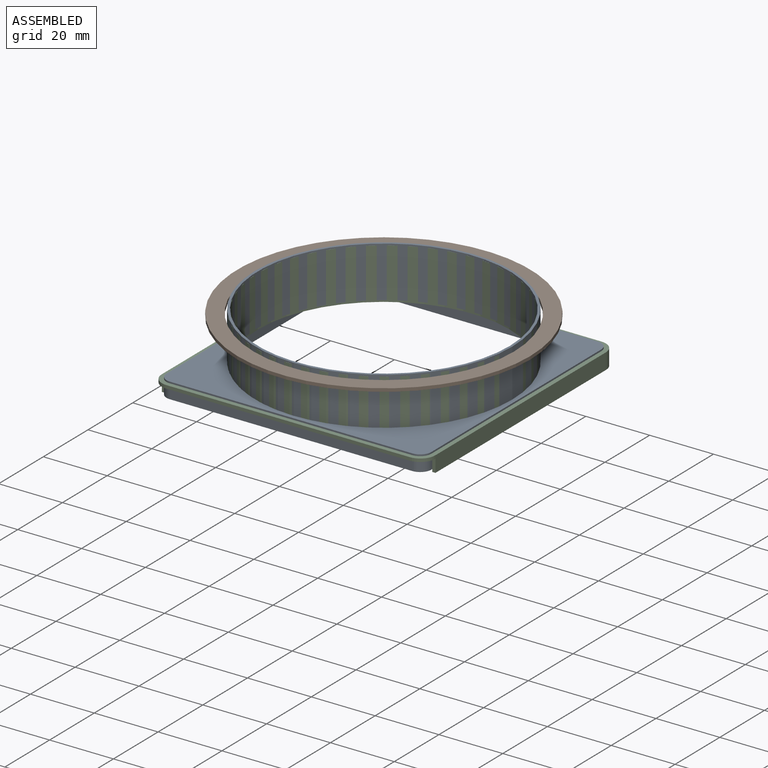
[diagram: assembled view]
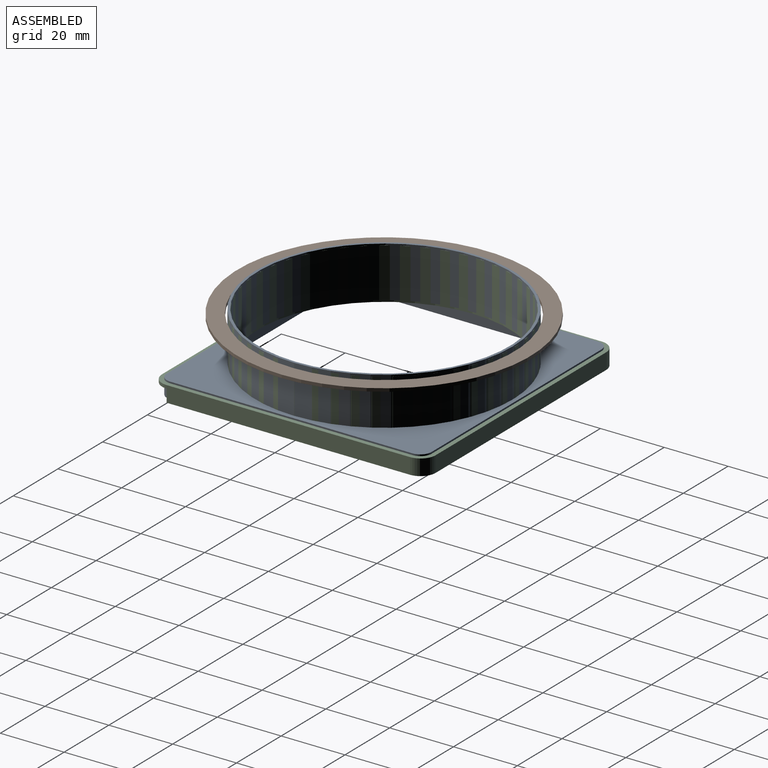
[diagram: assembled view, second angle]
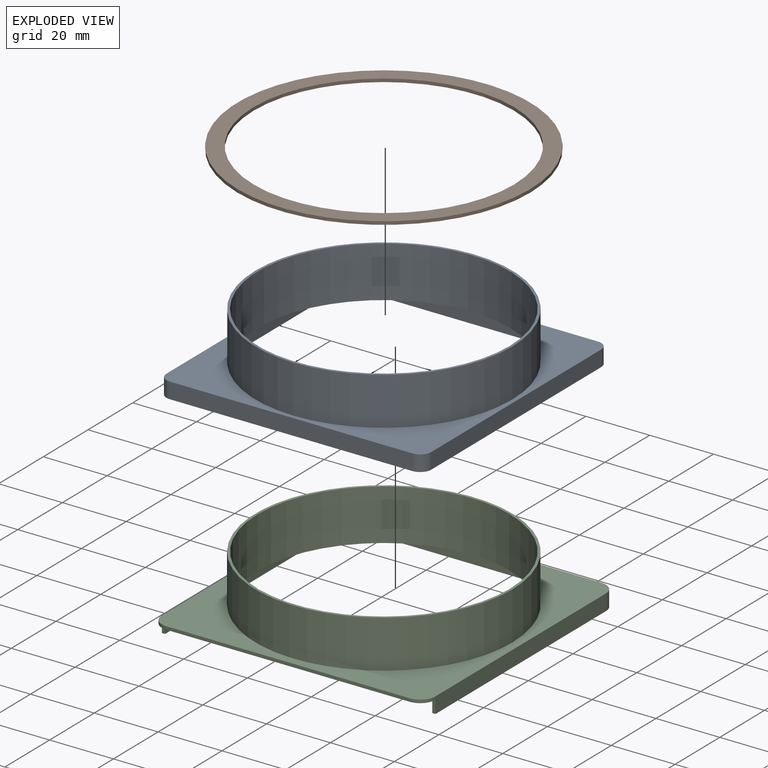
[diagram: exploded view]
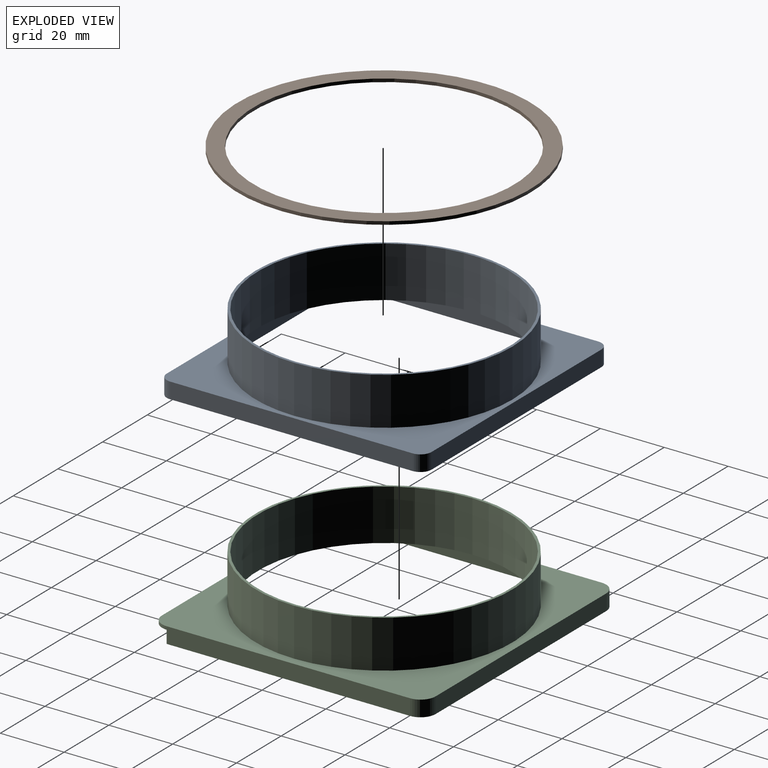
[diagram: exploded view, second angle]
ASSEMBLY  parts=3 mates=2
PART A: 22 faces, bbox 83x83x20 mm
  f0: plane 76x5mm, normal (-1,0,0), area 380mm2, adj f1,f7,f8,f9
  f1: cylinder r=3.5mm len=5mm, axis (0,0,1), area 27.5mm2, adj f0,f2,f8,f9
  f2: plane 76x5mm, normal (0,-1,0), area 380mm2, adj f1,f3,f8,f9
  f3: cylinder r=3.5mm len=5mm, axis (0,0,1), area 27.5mm2, adj f2,f4,f8,f9
  f4: plane 76x5mm, normal (1,0,0), area 380mm2, adj f3,f5,f8,f9
  f5: cylinder r=3.5mm len=5mm, axis (0,0,1), area 27.5mm2, adj f4,f6,f8,f9
  f6: plane 76x5mm, normal (0,1,0), area 380mm2, adj f5,f7,f8,f9
  f7: cylinder r=3.5mm len=5mm, axis (0,0,1), area 27.5mm2, adj f0,f6,f8,f9
  f8: plane 83x83mm, normal (0,0,-1), area 322.8mm2, adj f0,f1,f2,f3,f4,f5,f6,f7
  f9: plane 83x83mm, normal (0,0,1), area 1788.9mm2, adj f0,f1,f2,f3,f4,f5,f6,f7
  f10: plane 76x4mm, normal (1,0,0), area 304mm2, adj f8,f11,f17,f18
  f11: cylinder r=2.5mm len=4mm, axis (0,0,1), area 15.7mm2, adj f8,f10,f12,f18
  f12: plane 76x4mm, normal (0,1,0), area 304mm2, adj f8,f11,f13,f18
  f13: cylinder r=2.5mm len=4mm, axis (0,0,1), area 15.7mm2, adj f8,f12,f14,f18
  f14: plane 76x4mm, normal (-1,0,0), area 304mm2, adj f8,f13,f15,f18
  f15: cylinder r=2.5mm len=4mm, axis (0,0,1), area 15.7mm2, adj f8,f14,f16,f18
  f16: plane 76x4mm, normal (0,-1,0), area 304mm2, adj f8,f15,f17,f18
  f17: cylinder r=2.5mm len=4mm, axis (0,0,1), area 15.7mm2, adj f8,f10,f16,f18
  f18: plane 81x81mm, normal (0,0,-1), area 1654mm2, adj f10,f11,f12,f13,f14,f15,f16,f17
  f19: cylinder r=39.5mm len=79mm, axis (0,0,1), area 3971mm2, adj f18,f21
  f20: cylinder r=40.25mm len=80.5mm, axis (0,0,-1), area 3793.5mm2, adj f9,f21
  f21: plane 80.5x80.5mm, normal (0,0,1), area 187.9mm2, adj f19,f20
PART B: 4 faces, bbox 91.8x91.8x1 mm
  f0: cylinder r=40.88mm len=81.75mm, axis (0,0,-1), area 256.8mm2, adj f2,f3
  f1: cylinder r=45.88mm len=91.75mm, axis (0,0,-1), area 288.2mm2, adj f2,f3
  f2: plane 91.75x91.75mm, normal (0,0,1), area 1362.7mm2, adj f0,f1
  f3: plane 91.75x91.75mm, normal (0,0,-1), area 1362.7mm2, adj f0,f1
PART C: 21 faces, bbox 85.8x85.8x20 mm
  f0: cylinder r=4.75mm len=4.75mm, axis (0,0,1), area 7.5mm2, adj f1,f4,f9,f15
  f1: plane 76.25x1mm, normal (0,-1,0), area 76.2mm2, adj f0,f2,f9,f15
  f2: cylinder r=4.75mm len=4.75mm, axis (0,0,1), area 7.5mm2, adj f1,f5,f9,f15
  f3: plane 85.75x81mm, normal (0,0,-1), area 242.1mm2, adj f4,f5,f6,f7,f8,f10,f11,f12
  f4: plane 76.25x5mm, normal (-1,0,0), area 381.2mm2, adj f0,f3,f8,f9,f19
  f5: plane 76.25x5mm, normal (1,0,0), area 381.2mm2, adj f2,f3,f6,f9,f20
  f6: cylinder r=4.75mm len=5mm, axis (0,0,1), area 37.3mm2, adj f3,f5,f7,f9
  f7: plane 76.25x5mm, normal (0,1,0), area 381.3mm2, adj f3,f6,f8,f9
  f8: cylinder r=4.75mm len=5mm, axis (0,0,1), area 37.3mm2, adj f3,f4,f7,f9
  f9: plane 85.75x85.75mm, normal (0,0,1), area 2244.1mm2, adj f0,f1,f2,f4,f5,f6,f7,f8
  f10: plane 76.25x4mm, normal (1,0,0), area 305mm2, adj f3,f14,f15,f19
  f11: plane 76.25x4mm, normal (-1,0,0), area 305mm2, adj f3,f12,f15,f20
  f12: cylinder r=3.75mm len=4mm, axis (0,0,1), area 23.6mm2, adj f3,f11,f13,f15
  f13: plane 76.25x4mm, normal (0,-1,0), area 305mm2, adj f3,f12,f14,f15
  f14: cylinder r=3.75mm len=4mm, axis (0,0,1), area 23.6mm2, adj f3,f10,f13,f15
  f15: plane 85.75x84.75mm, normal (0,0,-1), area 2189.9mm2, adj f0,f1,f2,f10,f11,f12,f13,f14
  f16: cylinder r=39.5mm len=79mm, axis (0,0,1), area 3971mm2, adj f15,f18
  f17: cylinder r=40.25mm len=80.5mm, axis (0,0,-1), area 3793.5mm2, adj f9,f18
  f18: plane 80.5x80.5mm, normal (0,0,1), area 187.9mm2, adj f16,f17
  f19: plane 4x1mm, normal (0,-1,0), area 4mm2, adj f3,f4,f10,f15
  f20: plane 4x1mm, normal (0,-1,0), area 4mm2, adj f3,f5,f11,f15
PLACE A t=(-28.35,-15.59,-3.83)mm
PLACE B t=(-28.35,-15.59,8.97)mm
PLACE C t=(-28.35,-15.59,-4.33)mm
MATE slider B.f0 <-> A.f19  axis (0,0,-1) through (-28.35,-15.59,9.47)mm
MATE slider C.f16 <-> A.f19  axis (0,0,-1) through (-28.35,-15.59,3.17)mm
